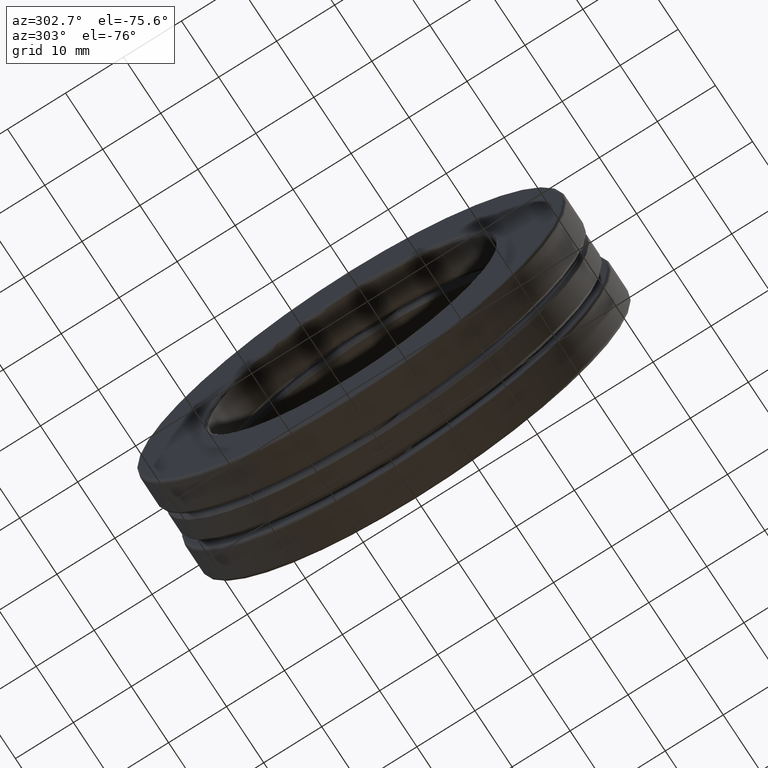
[diagram: clean part render]
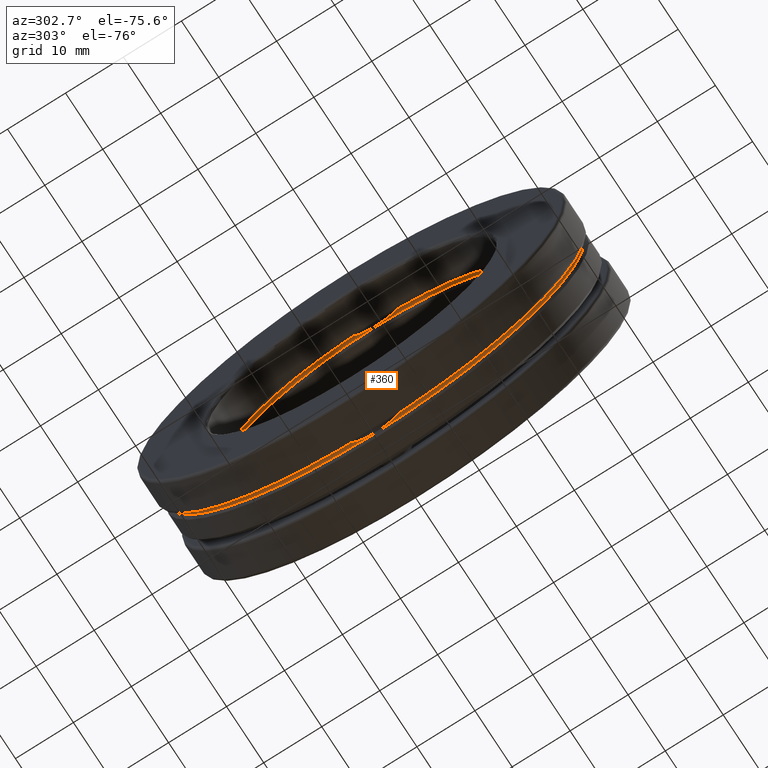
[diagram: same view with one face highlighted and labeled with its STEP entity id]
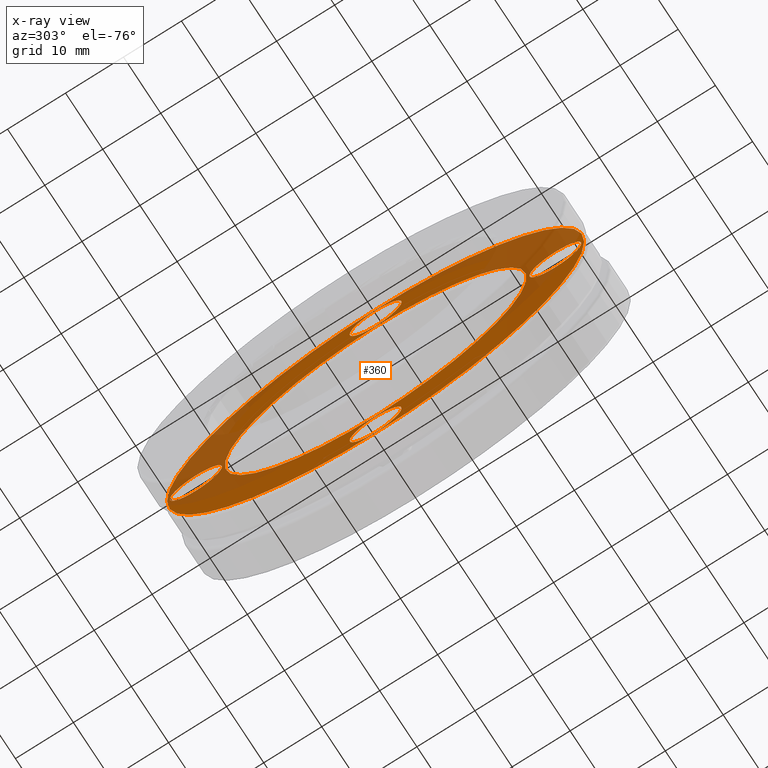
[diagram: x-ray of the same camera — body ghosted, the highlighted face saturated]
A machine part, auxiliary view. The second image highlights one B-rep face of the part: STEP entity #360.
The next image is the same camera in x-ray: the body ghosted, the highlighted face saturated — about 42% of this face is hidden behind the body in this view.
In plain terms, the highlighted planar face has unit normal (1, 0, 0).
Its self-contained STEP definition (entity closure, byte-faithful):
#14 = FACE_BOUND ( 'NONE', #139, .T. ) ;
#59 = VERTEX_POINT ( 'NONE', #145 ) ;
#83 = ORIENTED_EDGE ( 'NONE', *, *, #805, .F. ) ;
#96 = AXIS2_PLACEMENT_3D ( 'NONE', #289, #588, #358 ) ;
#133 = AXIS2_PLACEMENT_3D ( 'NONE', #218, #154, #288 ) ;
#139 = EDGE_LOOP ( 'NONE', ( #83 ) ) ;
#145 = CARTESIAN_POINT ( 'NONE',  ( -0.08862499999999999500, 0.0000000000000000000, 1.416499999999999400 ) ) ;
#151 = CARTESIAN_POINT ( 'NONE',  ( -0.08862499999999996800, 0.0000000000000000000, 1.024500000000000200 ) ) ;
#152 = CIRCLE ( 'NONE', #641, 0.1765000000000000200 ) ;
#154 = DIRECTION ( 'NONE',  ( -1.000000000000000000, -0.0000000000000000000, -0.0000000000000000000 ) ) ;
#183 = CARTESIAN_POINT ( 'NONE',  ( -0.08862499999999996800, 0.0000000000000000000, 0.0000000000000000000 ) ) ;
#218 = CARTESIAN_POINT ( 'NONE',  ( -0.08862499999999996800, -1.220499999999999700, 0.0000000000000000000 ) ) ;
#238 = EDGE_CURVE ( 'NONE', #573, #573, #745, .T. ) ;
#241 = DIRECTION ( 'NONE',  ( -1.000000000000000000, -0.0000000000000000000, -0.0000000000000000000 ) ) ;
#250 = DIRECTION ( 'NONE',  ( 0.0000000000000000000, 0.0000000000000000000, -1.000000000000000000 ) ) ;
#259 = FACE_BOUND ( 'NONE', #463, .T. ) ;
#266 = DIRECTION ( 'NONE',  ( 0.0000000000000000000, 0.0000000000000000000, 1.000000000000000000 ) ) ;
#267 = CARTESIAN_POINT ( 'NONE',  ( -0.08862499999999999500, 0.0000000000000000000, 0.0000000000000000000 ) ) ;
#271 = DIRECTION ( 'NONE',  ( -1.000000000000000000, -0.0000000000000000000, -0.0000000000000000000 ) ) ;
#284 = VERTEX_POINT ( 'NONE', #576 ) ;
#288 = DIRECTION ( 'NONE',  ( 0.0000000000000000000, 0.0000000000000000000, 1.000000000000000000 ) ) ;
#289 = CARTESIAN_POINT ( 'NONE',  ( -0.08862499999999996800, -4.261352974058043300E-015, -1.220499999999999700 ) ) ;
#316 = PLANE ( 'NONE',  #533 ) ;
#318 = DIRECTION ( 'NONE',  ( 1.000000000000000000, 0.0000000000000000000, 0.0000000000000000000 ) ) ;
#340 = FACE_BOUND ( 'NONE', #628, .T. ) ;
#358 = DIRECTION ( 'NONE',  ( 0.0000000000000000000, -1.000000000000000000, 3.869473078844565300E-015 ) ) ;
#360 = ADVANCED_FACE ( 'NONE', ( #14, #259, #340, #569, #551, #399 ), #316, .F. ) ;
#383 = EDGE_CURVE ( 'NONE', #563, #563, #479, .T. ) ;
#391 = EDGE_LOOP ( 'NONE', ( #522 ) ) ;
#399 = FACE_OUTER_BOUND ( 'NONE', #764, .T. ) ;
#401 = ORIENTED_EDGE ( 'NONE', *, *, #666, .T. ) ;
#405 = CARTESIAN_POINT ( 'NONE',  ( -0.08862499999999996800, -0.1765000000000042900, -1.220499999999999000 ) ) ;
#463 = EDGE_LOOP ( 'NONE', ( #581 ) ) ;
#467 = CARTESIAN_POINT ( 'NONE',  ( -0.08862499999999996800, 0.1765000000000127900, 1.220499999999997900 ) ) ;
#479 = CIRCLE ( 'NONE', #546, 1.024500000000000200 ) ;
#488 = EDGE_CURVE ( 'NONE', #789, #789, #152, .T. ) ;
#511 = CIRCLE ( 'NONE', #793, 0.1765000000000000200 ) ;
#520 = ORIENTED_EDGE ( 'NONE', *, *, #743, .F. ) ;
#522 = ORIENTED_EDGE ( 'NONE', *, *, #383, .F. ) ;
#533 = AXIS2_PLACEMENT_3D ( 'NONE', #752, #318, #250 ) ;
#534 = CIRCLE ( 'NONE', #96, 0.1765000000000000200 ) ;
#536 = CARTESIAN_POINT ( 'NONE',  ( -0.08862499999999996800, 1.278405892217413100E-014, 1.220499999999999700 ) ) ;
#546 = AXIS2_PLACEMENT_3D ( 'NONE', #183, #753, #816 ) ;
#551 = FACE_BOUND ( 'NONE', #391, .T. ) ;
#563 = VERTEX_POINT ( 'NONE', #151 ) ;
#569 = FACE_BOUND ( 'NONE', #737, .T. ) ;
#573 = VERTEX_POINT ( 'NONE', #717 ) ;
#576 = CARTESIAN_POINT ( 'NONE',  ( -0.08862499999999996800, 1.220499999999999700, -0.1765000000000000200 ) ) ;
#578 = CARTESIAN_POINT ( 'NONE',  ( -0.08862499999999996800, 1.220499999999999700, 0.0000000000000000000 ) ) ;
#581 = ORIENTED_EDGE ( 'NONE', *, *, #238, .F. ) ;
#588 = DIRECTION ( 'NONE',  ( -1.000000000000000000, -0.0000000000000000000, -0.0000000000000000000 ) ) ;
#628 = EDGE_LOOP ( 'NONE', ( #684 ) ) ;
#641 = AXIS2_PLACEMENT_3D ( 'NONE', #536, #241, #669 ) ;
#662 = DIRECTION ( 'NONE',  ( 0.0000000000000000000, 0.0000000000000000000, -1.000000000000000000 ) ) ;
#666 = EDGE_CURVE ( 'NONE', #59, #59, #791, .T. ) ;
#669 = DIRECTION ( 'NONE',  ( 0.0000000000000000000, 1.000000000000000000, -1.083452462076478100E-014 ) ) ;
#684 = ORIENTED_EDGE ( 'NONE', *, *, #488, .F. ) ;
#710 = VERTEX_POINT ( 'NONE', #405 ) ;
#717 = CARTESIAN_POINT ( 'NONE',  ( -0.08862499999999996800, -1.220499999999999700, 0.1765000000000000200 ) ) ;
#729 = DIRECTION ( 'NONE',  ( -1.000000000000000000, -0.0000000000000000000, -0.0000000000000000000 ) ) ;
#737 = EDGE_LOOP ( 'NONE', ( #520 ) ) ;
#743 = EDGE_CURVE ( 'NONE', #284, #284, #511, .T. ) ;
#745 = CIRCLE ( 'NONE', #133, 0.1765000000000000200 ) ;
#752 = CARTESIAN_POINT ( 'NONE',  ( -0.08862499999999996800, -7.720345294594878900E-018, 0.0000000000000000000 ) ) ;
#753 = DIRECTION ( 'NONE',  ( -1.000000000000000000, -0.0000000000000000000, -0.0000000000000000000 ) ) ;
#764 = EDGE_LOOP ( 'NONE', ( #401 ) ) ;
#789 = VERTEX_POINT ( 'NONE', #467 ) ;
#791 = CIRCLE ( 'NONE', #824, 1.416499999999999400 ) ;
#793 = AXIS2_PLACEMENT_3D ( 'NONE', #578, #729, #662 ) ;
#805 = EDGE_CURVE ( 'NONE', #710, #710, #534, .T. ) ;
#816 = DIRECTION ( 'NONE',  ( 0.0000000000000000000, 0.0000000000000000000, 1.000000000000000000 ) ) ;
#824 = AXIS2_PLACEMENT_3D ( 'NONE', #267, #271, #266 ) ;